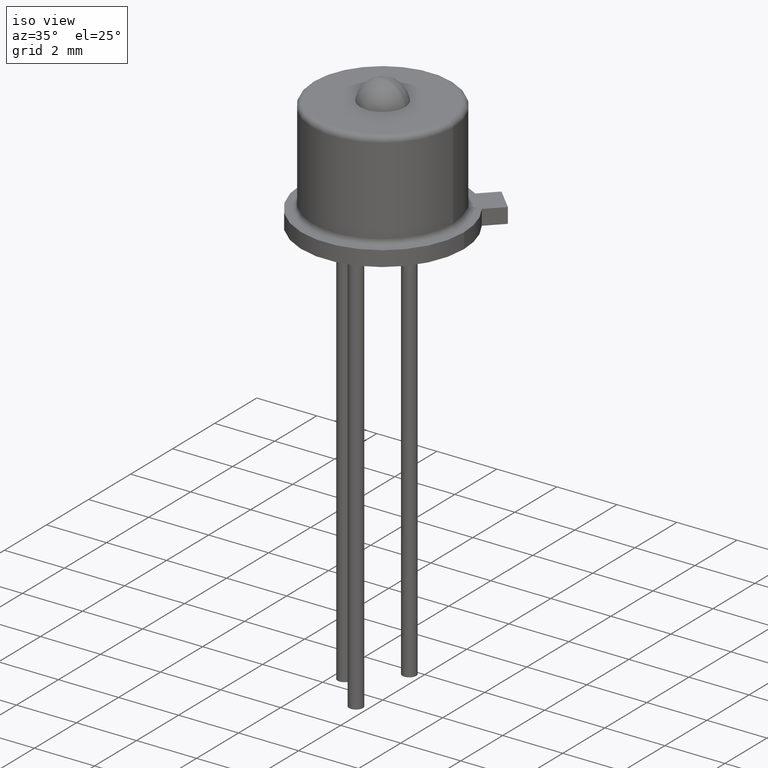
[diagram: clean part render]
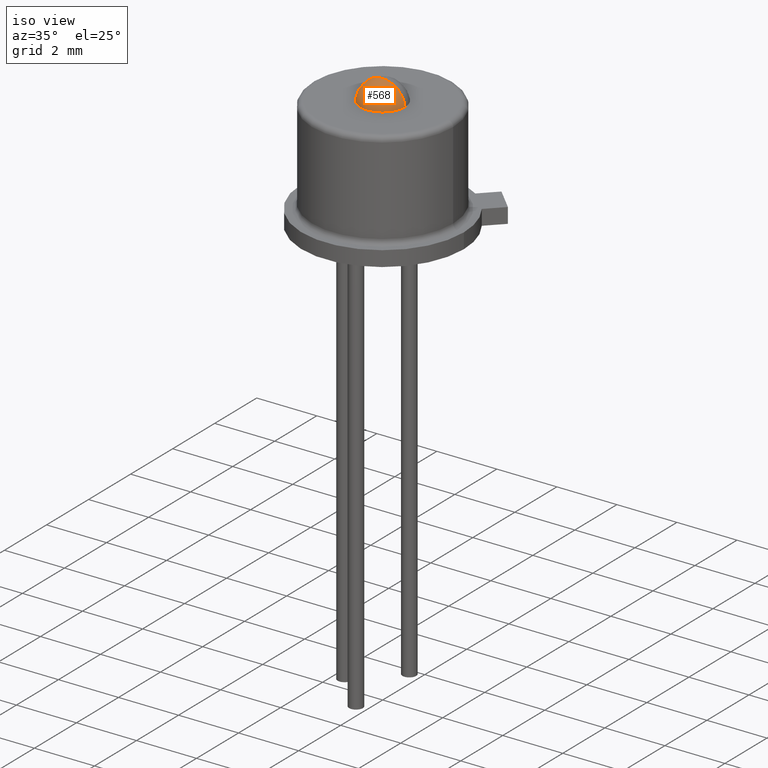
[diagram: same view with one face highlighted and labeled with its STEP entity id]
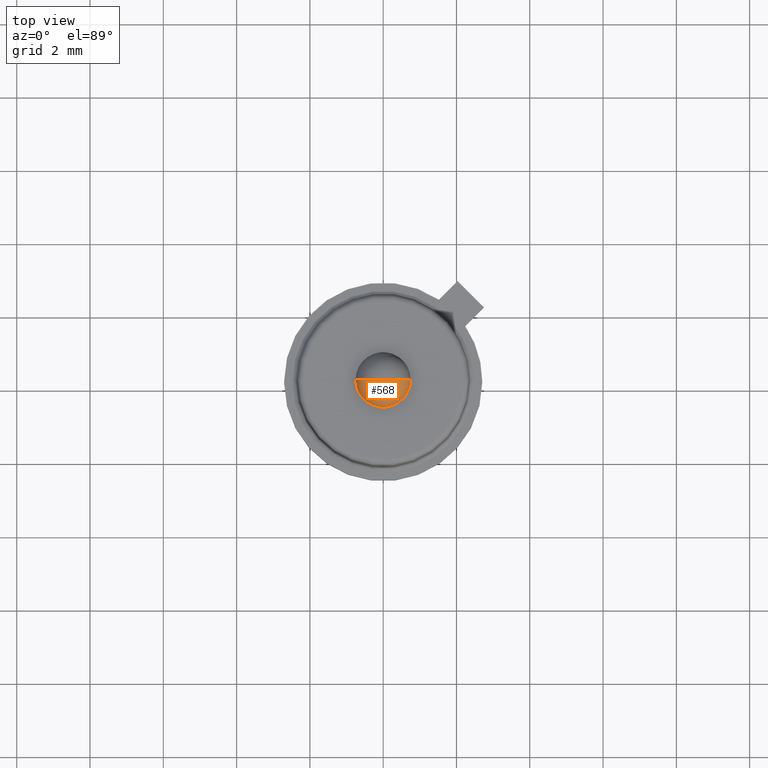
[diagram: same view with one face highlighted and labeled with its STEP entity id]
A machine part, iso view. The second image highlights one B-rep face of the part: STEP entity #568.
A second angle (top view) of the same face is appended — the face is thin or edge-on in the first view.
In plain terms, the highlighted spherical surface has radius 0.7553 mm.
Its self-contained STEP definition (entity closure, byte-faithful):
#142 = ORIENTED_EDGE ( 'NONE', *, *, #622, .F. ) ;
#143 = ORIENTED_EDGE ( 'NONE', *, *, #621, .T. ) ;
#144 = ORIENTED_EDGE ( 'NONE', *, *, #624, .F. ) ;
#193 = VERTEX_POINT ( 'NONE', #1547 ) ;
#200 = VERTEX_POINT ( 'NONE', #1480 ) ;
#202 = VERTEX_POINT ( 'NONE', #1553 ) ;
#248 = EDGE_LOOP ( 'NONE', ( #142, #143, #144 ) ) ;
#416 = CARTESIAN_POINT ( 'NONE',  ( 0.0000000000000000000, 0.0000000000000000000, 0.1442644190383295700 ) ) ;
#425 = DIRECTION ( 'NONE',  ( 0.0000000000000000000, 1.000000000000000000, -0.0000000000000000000 ) ) ;
#426 = DIRECTION ( 'NONE',  ( -1.000000000000000000, 0.0000000000000000000, 0.0000000000000000000 ) ) ;
#568 = ADVANCED_FACE ( 'NONE', ( #750 ), #755, .T. ) ;
#621 = EDGE_CURVE ( 'NONE', #193, #200, #1291, .T. ) ;
#622 = EDGE_CURVE ( 'NONE', #193, #202, #1290, .T. ) ;
#624 = EDGE_CURVE ( 'NONE', #202, #200, #1293, .T. ) ;
#723 = AXIS2_PLACEMENT_3D ( 'NONE', #416, #425, #426 ) ;
#750 = FACE_OUTER_BOUND ( 'NONE', #248, .T. ) ;
#755 = SPHERICAL_SURFACE ( 'NONE', #723, 0.02973557692307689900 ) ;
#952 = AXIS2_PLACEMENT_3D ( 'NONE', #1147, #1148, #1149 ) ;
#953 = AXIS2_PLACEMENT_3D ( 'NONE', #1150, #1151, #1152 ) ;
#955 = AXIS2_PLACEMENT_3D ( 'NONE', #1156, #1157, #1158 ) ;
#1147 = CARTESIAN_POINT ( 'NONE',  ( 0.0000000000000000000, 0.0000000000000000000, 0.1442644190383295700 ) ) ;
#1148 = DIRECTION ( 'NONE',  ( 0.0000000000000000000, -1.000000000000000000, 0.0000000000000000000 ) ) ;
#1149 = DIRECTION ( 'NONE',  ( 0.0000000000000000000, 0.0000000000000000000, -1.000000000000000000 ) ) ;
#1150 = CARTESIAN_POINT ( 'NONE',  ( 0.0000000000000000000, 0.0000000000000000000, 0.1442644190383295700 ) ) ;
#1151 = DIRECTION ( 'NONE',  ( -1.224646799147353200E-016, 1.000000000000000000, 2.232154699591033100E-048 ) ) ;
#1152 = DIRECTION ( 'NONE',  ( -1.000000000000000000, -1.224646799147353200E-016, 0.0000000000000000000 ) ) ;
#1156 = CARTESIAN_POINT ( 'NONE',  ( -9.800514888115017100E-066, 0.0000000000000000000, 0.1479999959614064800 ) ) ;
#1157 = DIRECTION ( 'NONE',  ( -1.822692633619053300E-032, -0.0000000000000000000, -1.000000000000000000 ) ) ;
#1158 = DIRECTION ( 'NONE',  ( -1.000000000000000000, 0.0000000000000000000, 0.0000000000000000000 ) ) ;
#1290 = CIRCLE ( 'NONE', #953, 0.02973557692307689900 ) ;
#1291 = CIRCLE ( 'NONE', #952, 0.02973557692307689900 ) ;
#1293 = CIRCLE ( 'NONE', #955, 0.02949999999999998500 ) ;
#1480 = CARTESIAN_POINT ( 'NONE',  ( -0.02949999999999997800, 0.0000000000000000000, 0.1479999959614064800 ) ) ;
#1547 = CARTESIAN_POINT ( 'NONE',  ( -1.820778954982301000E-018, 0.0000000000000000000, 0.1739999959614064700 ) ) ;
#1553 = CARTESIAN_POINT ( 'NONE',  ( 0.02949999999999997800, 3.612708057484689400E-018, 0.1479999959614064800 ) ) ;